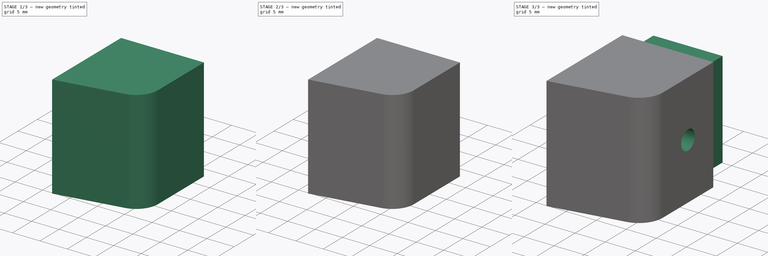
[diagram: build sequence overview — one tinted view per stage of 3, left to right]
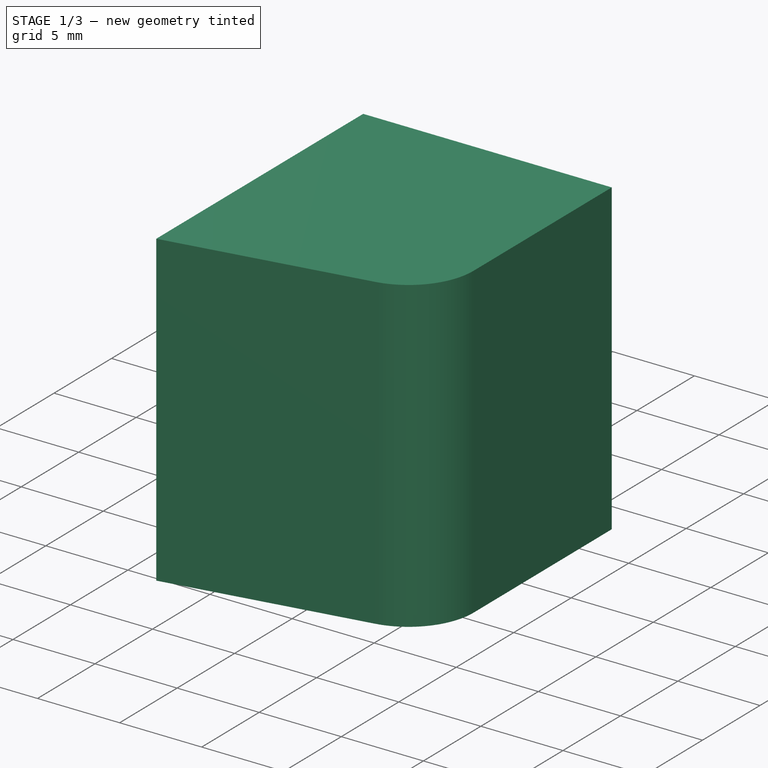
[diagram: stage 1 of 3 — iso view after this stage's code; geometry added in this stage tinted green]
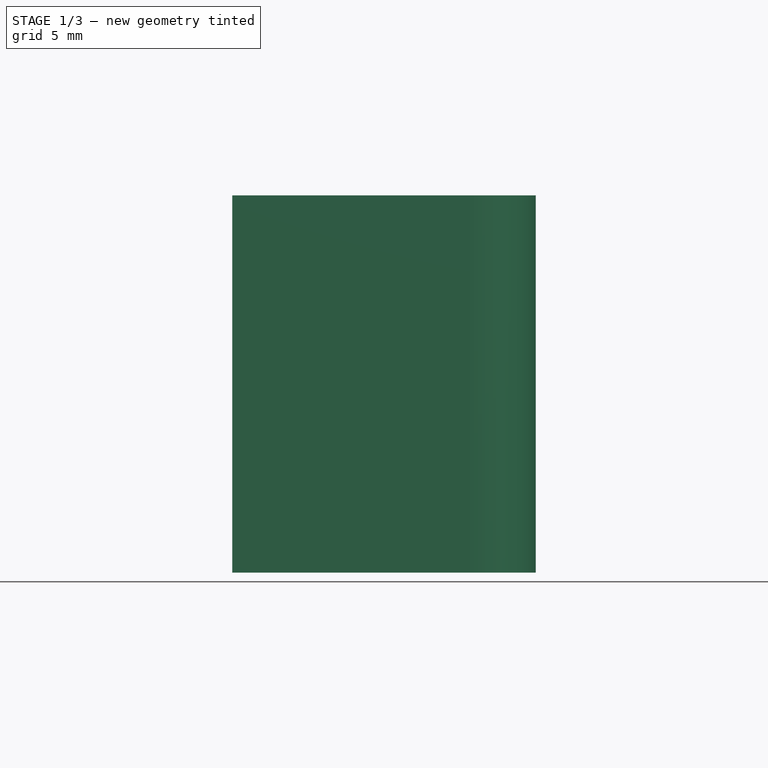
[diagram: stage 1 of 3 — front view after this stage's code; geometry added in this stage tinted green]
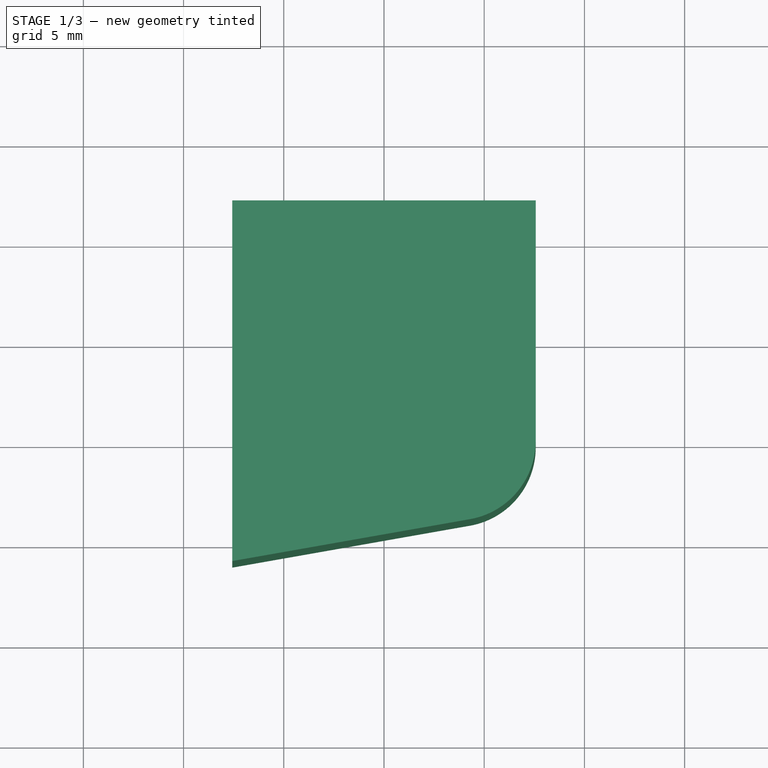
[diagram: stage 1 of 3 — top view after this stage's code; geometry added in this stage tinted green]
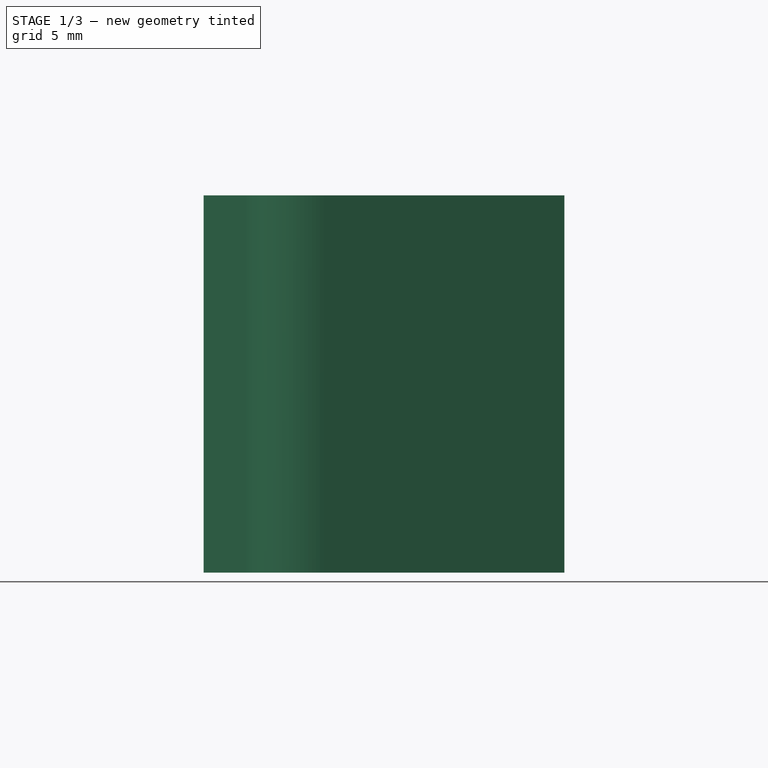
[diagram: stage 1 of 3 — right view after this stage's code; geometry added in this stage tinted green]
FCSTD DOCUMENT  (FreeCAD 0.20R)
Label: radial-fan-duct
License: All rights reserved
LicenseURL: http://en.wikipedia.org/wiki/All_rights_reserved
objects: Sketcher::SketchObject×5, PartDesign::Pocket×3, PartDesign::Pad×2, PartDesign::Body×1
note: 16 computed .brp shape members not serialized (recipe doc carries the construction recipe); baked Part::Feature solids carry a one-line shape summary decoded from their .brp

FEATURE [Sketcher::SketchObject] Sketch
  FullyConstrained = true
  MapMode = 5
  Support = -> [XY_Plane]
  sketch-geometry (8):
    g0: LineSegment StartX=-7.57 StartY=12 StartZ=0 EndX=7.57 EndY=12 EndZ=0
    g1: LineSegment StartX=7.57 StartY=12 StartZ=0 EndX=7.57 EndY=0 EndZ=0
    g2: LineSegment StartX=-7.57 StartY=0 StartZ=0 EndX=-7.57 EndY=12 EndZ=0
    g3: LineSegment StartX=0 StartY=0 StartZ=0 EndX=0 EndY=-6 EndZ=0
    g4: LineSegment StartX=-7.57 StartY=0 StartZ=0 EndX=-7.57 EndY=-6 EndZ=0
    g5: LineSegment StartX=-7.57 StartY=-6 StartZ=0 EndX=4.29019 EndY=-3.90873 EndZ=0
    g6: LineSegment StartX=0 StartY=-6 StartZ=0 EndX=-7.57 EndY=-6 EndZ=0
    g7: ArcOfCircle CenterX=3.60097 CenterY=-5e-16 CenterZ=0 NormalX=0 NormalY=0 NormalZ=1 AngleXU=0 Radius=3.96903 StartAngle=4.88692 EndAngle=6.28319
  constraints (21):
    c: Coincident(g0,g1)
    c: Coincident(g2,g0)
    c: Horizontal(g0)
    c: Vertical(g1)
    c: Vertical(g2)
    c: DistanceX(g0,g0) = 15.14
    c: DistanceY(g1,g1) = 12
    c: Symmetric(g1,g2,g-2)
    c: PointOnObject(g1,g-1)
    c: Coincident(g3,g-1)
    c: Vertical(g3)
    c: DistanceY(g3,g3) = 6
    c: Vertical(g4)
    c: Coincident(g4,g5)
    c: Coincident(g6,g3)
    c: Coincident(g6,g4)
    c: Horizontal(g6)
    c: Coincident(g4,g2)
    c: Tangent(g7,g1) = 1.5708
    c: Tangent(g7,g5) = -1.5708
    c: Angle(g6,g5) = 0.174533
FEATURE [PartDesign::Pad] Pad
  Direction = (0,0,1)
  Length = 18.82
  Length2 = 100
  Midplane = true
  Profile = -> Sketch
  ReferenceAxis = -> Sketch [N_Axis]
  Type = 0
FEATURE [Sketcher::SketchObject] Sketch001
  FullyConstrained = true
  MapMode = 5
  Placement = pos=(0,12,0) rot=(0,0.707107,0.707107;3.14159rad)
  Support = -> [Pad]
  sketch-geometry (4):
    g0: LineSegment StartX=-4.5 StartY=7 StartZ=0 EndX=4.5 EndY=7 EndZ=0
    g1: LineSegment StartX=4.5 StartY=7 StartZ=0 EndX=4.5 EndY=-7 EndZ=0
    g2: LineSegment StartX=4.5 StartY=-7 StartZ=0 EndX=-4.5 EndY=-7 EndZ=0
    g3: LineSegment StartX=-4.5 StartY=-7 StartZ=0 EndX=-4.5 EndY=7 EndZ=0
  constraints (10):
    c: Coincident(g0,g1)
    c: Coincident(g1,g2)
    c: Coincident(g2,g3)
    c: Coincident(g3,g0)
    c: Horizontal(g2)
    c: Vertical(g3)
    c: Symmetric(g0,g0,g-2)
    c: DistanceX(g2,g2) = 9
    c: DistanceY(g1,g1) = 14
    c: Symmetric(g0,g1,g-1)
FEATURE [PartDesign::Pocket] Pocket
  BaseFeature = -> Pad
  Direction = (0,-1,2e-16)
  Length = 12
  Length2 = 100
  Profile = -> Sketch001
  ReferenceAxis = -> Sketch001 [N_Axis]
  Type = 0
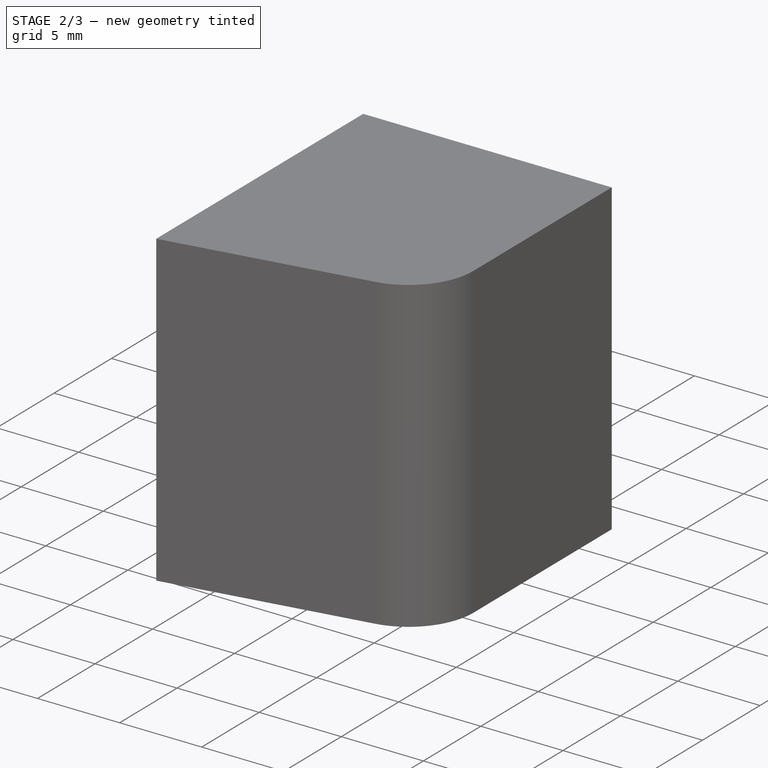
[diagram: stage 2 of 3 — iso view after this stage's code; geometry added in this stage tinted green]
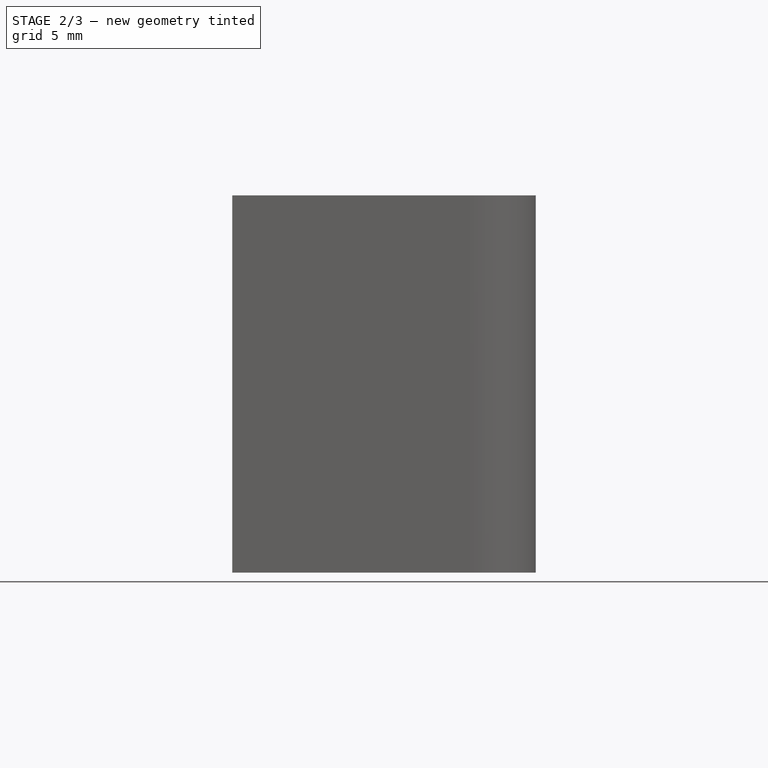
[diagram: stage 2 of 3 — front view after this stage's code; geometry added in this stage tinted green]
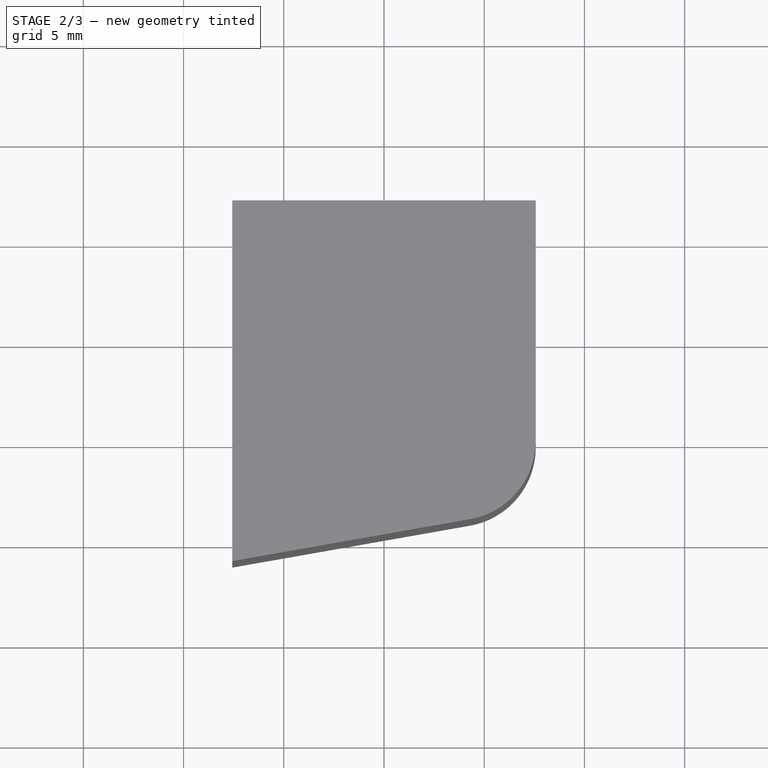
[diagram: stage 2 of 3 — top view after this stage's code; geometry added in this stage tinted green]
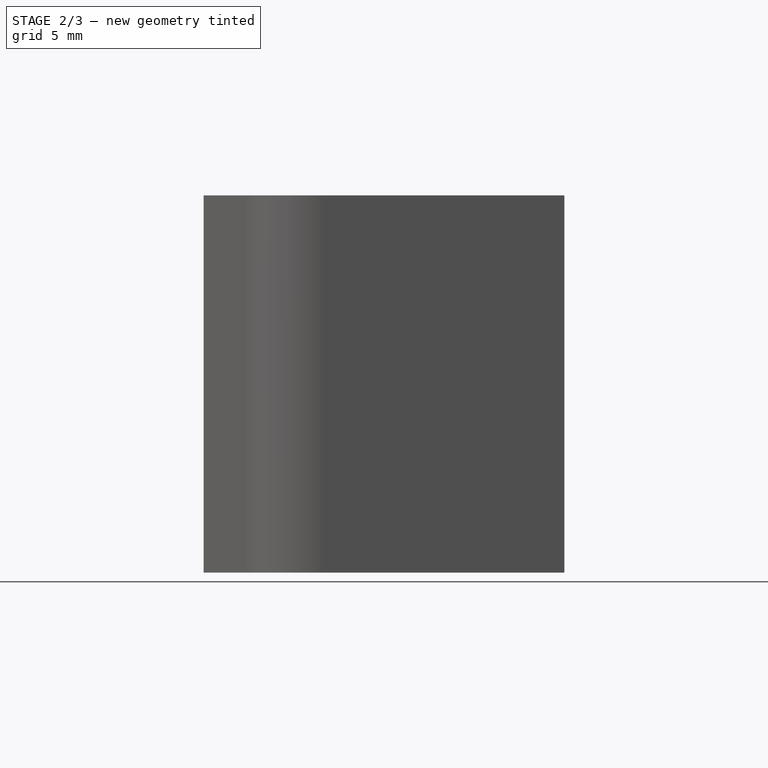
[diagram: stage 2 of 3 — right view after this stage's code; geometry added in this stage tinted green]
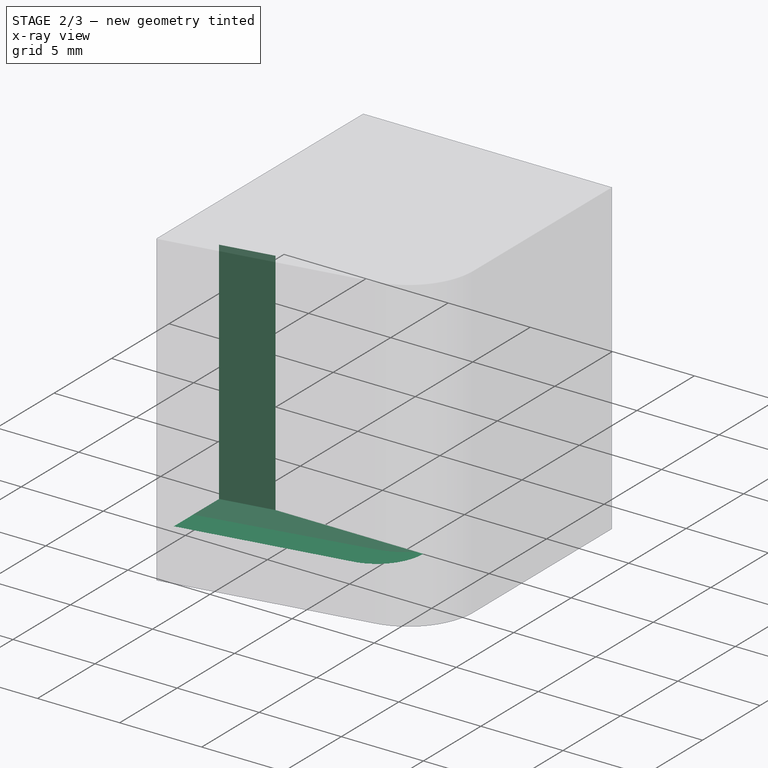
[diagram: stage 2 of 3 — x-ray composite at the iso view; earlier geometry ghosted, this stage's added geometry solid]
FEATURE [Sketcher::SketchObject] Sketch002
  ExternalGeometry = -> [Pocket]
  FullyConstrained = true
  MapMode = 5
  Placement = pos=(0,-1.6e-15,-7) rot=(0,0,1;0rad)
  Support = -> [Pocket]
  sketch-geometry (5):
    g0: LineSegment StartX=-4.5 StartY=0 StartZ=0 EndX=-7.57 EndY=-0.541324 EndZ=0
    g1: LineSegment StartX=-7.57 StartY=-0.541324 StartZ=0 EndX=-7.57 EndY=-4.5 EndZ=0
    g2: LineSegment StartX=-7.57 StartY=-4.5 StartZ=0 EndX=2.1643 EndY=-2.78358 EndZ=0
    g3: ArcOfCircle CenterX=1.67348 CenterY=0 CenterZ=0 NormalX=0 NormalY=0 NormalZ=1 AngleXU=0 Radius=2.82652 StartAngle=4.88692 EndAngle=6.28319
    g4: LineSegment StartX=-4.5 StartY=0 StartZ=0 EndX=4.5 EndY=-7e-16 EndZ=0
  constraints (13):
    c: Coincident(g-3,g0)
    c: PointOnObject(g0,g-5)
    c: Coincident(g0,g1)
    c: PointOnObject(g1,g-5)
    c: Coincident(g1,g2)
    c: PointOnObject(g3,g-1)
    c: Coincident(g3,g-4)
    c: Parallel(g2,g-7)
    c: Distance(g1,g-7) = 1.5
    c: Tangent(g3,g2) = -1.5708
    c: Parallel(g2,g0)
    c: Coincident(g4,g0)
    c: Coincident(g4,g3)
FEATURE [PartDesign::Pocket] Pocket001
  BaseFeature = -> Pocket
  Direction = (0,-2e-16,-1)
  Length = 14
  Length2 = 100
  Profile = -> Sketch002
  ReferenceAxis = -> Sketch002 [N_Axis]
  Reversed = true
  Type = 0
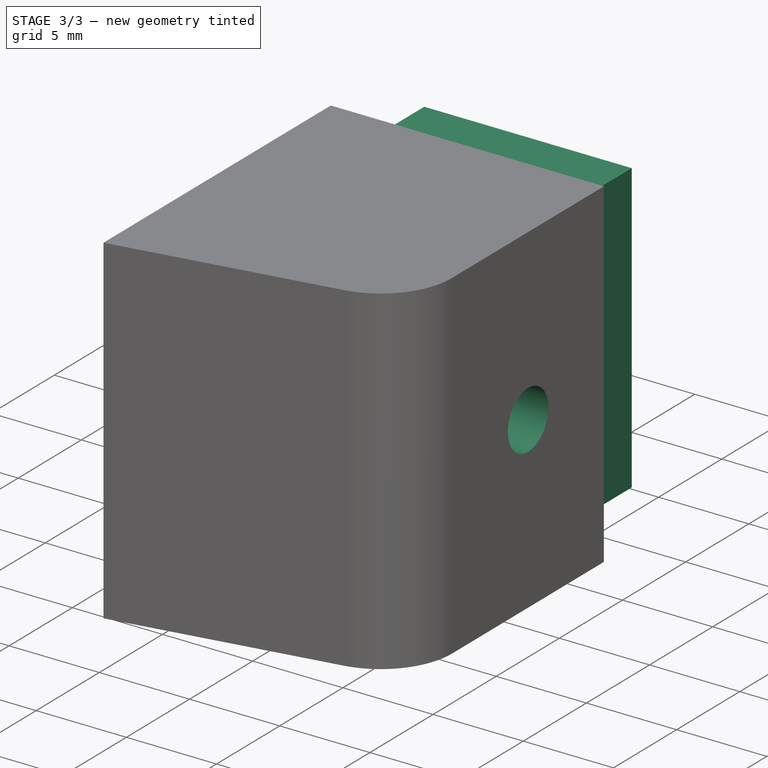
[diagram: stage 3 of 3 — iso view after this stage's code; geometry added in this stage tinted green]
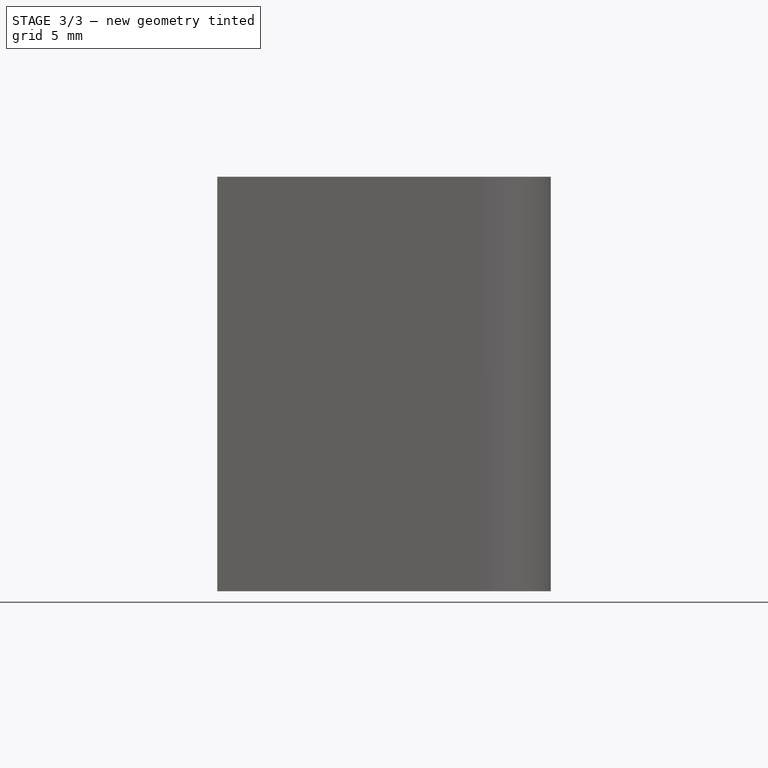
[diagram: stage 3 of 3 — front view after this stage's code; geometry added in this stage tinted green]
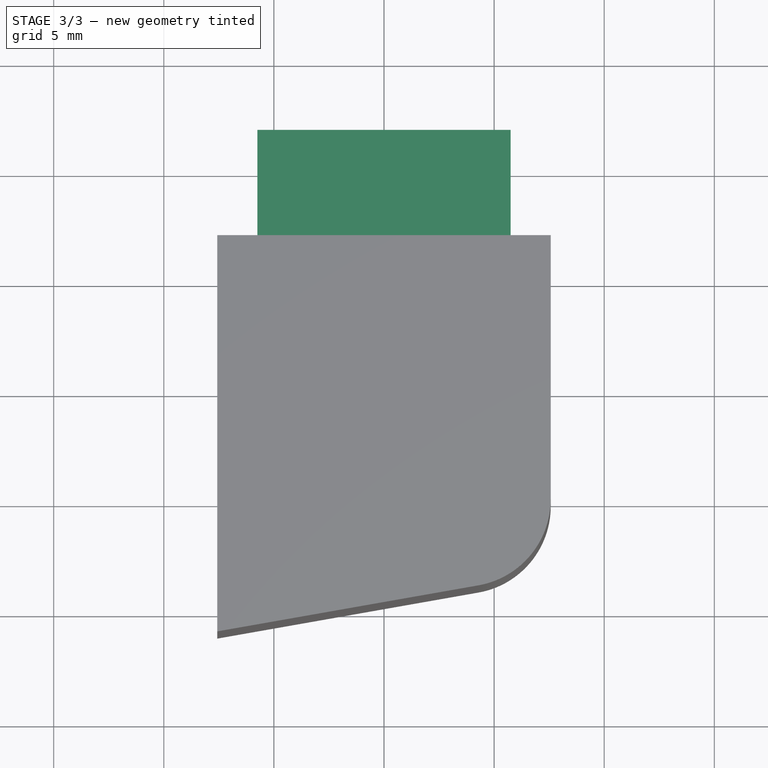
[diagram: stage 3 of 3 — top view after this stage's code; geometry added in this stage tinted green]
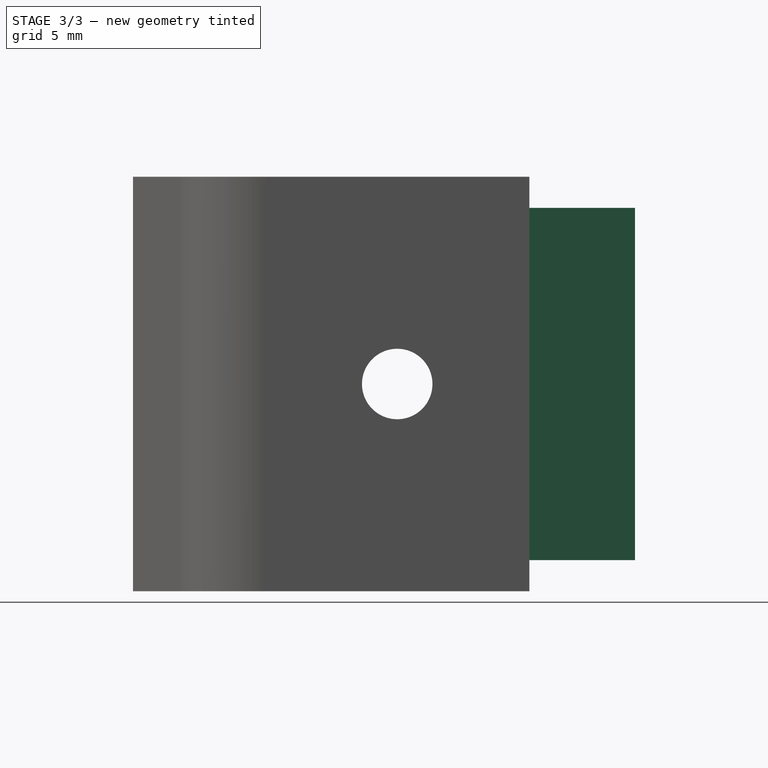
[diagram: stage 3 of 3 — right view after this stage's code; geometry added in this stage tinted green]
FEATURE [Sketcher::SketchObject] Sketch003
  ExternalGeometry = -> [Pocket001]
  FullyConstrained = true
  MapMode = 5
  Placement = pos=(0,12,0) rot=(0,0.707107,0.707107;3.14159rad)
  Support = -> [Pocket001]
  sketch-geometry (8):
    g0: LineSegment StartX=-4.5 StartY=7 StartZ=0 EndX=4.5 EndY=7 EndZ=0
    g1: LineSegment StartX=4.5 StartY=7 StartZ=0 EndX=4.5 EndY=-7 EndZ=0
    g2: LineSegment StartX=4.5 StartY=-7 StartZ=0 EndX=-4.5 EndY=-7 EndZ=0
    g3: LineSegment StartX=-4.5 StartY=-7 StartZ=0 EndX=-4.5 EndY=7 EndZ=0
    g4: LineSegment StartX=-5.75 StartY=8 StartZ=0 EndX=5.75 EndY=8 EndZ=0
    g5: LineSegment StartX=5.75 StartY=8 StartZ=0 EndX=5.75 EndY=-8 EndZ=0
    g6: LineSegment StartX=5.75 StartY=-8 StartZ=0 EndX=-5.75 EndY=-8 EndZ=0
    g7: LineSegment StartX=-5.75 StartY=-8 StartZ=0 EndX=-5.75 EndY=8 EndZ=0
  constraints (20):
    c: Coincident(g0,g1)
    c: Coincident(g1,g2)
    c: Coincident(g2,g3)
    c: Coincident(g3,g0)
    c: Horizontal(g0)
    c: Horizontal(g2)
    c: Vertical(g1)
    c: Vertical(g3)
    c: Coincident(g0,g-4)
    c: Coincident(g1,g-6)
    c: Coincident(g4,g5)
    c: Coincident(g5,g6)
    c: Coincident(g6,g7)
    c: Coincident(g7,g4)
    c: Horizontal(g6)
    c: Vertical(g7)
    c: Symmetric(g4,g5,g-1)
    c: Symmetric(g4,g4,g-2)
    c: DistanceX(g4,g4) = 11.5
    c: DistanceY(g7,g7) = 16
FEATURE [PartDesign::Pad] Pad001
  BaseFeature = -> Pocket001
  Direction = (0,1,-2e-16)
  Length = 4.8
  Length2 = 100
  Profile = -> Sketch003
  ReferenceAxis = -> Sketch003 [N_Axis]
  Type = 0
FEATURE [Sketcher::SketchObject] Sketch004
  ExternalGeometry = -> [Pad001]
  FullyConstrained = true
  MapMode = 5
  Placement = pos=(-7.57,0,0) rot=(0.57735,-0.57735,-0.57735;2.0944rad)
  Support = -> [Pad001]
  sketch-geometry (1):
    g0: Circle CenterX=-6 CenterY=0 CenterZ=0 NormalX=0 NormalY=0 NormalZ=1 AngleXU=0 Radius=1.6
  constraints (3):
    c: PointOnObject(g0,g-1)
    c: Distance(g0,g-3) = 6
    c: Radius(g0) = 1.6
FEATURE [PartDesign::Pocket] Pocket002
  BaseFeature = -> Pad001
  Direction = (1,0,0)
  Length = 5
  Length2 = 100
  Profile = -> Sketch004
  ReferenceAxis = -> Sketch004 [N_Axis]
  Type = 1
FEATURE [PartDesign::Body] Body
  Group = -> [Sketch,Pad,Sketch001,Pocket,Sketch002,Pocket001,Sketch003,Pad001,Sketch004,Pocket002]
  Origin = -> Origin
  Tip = -> Pocket002
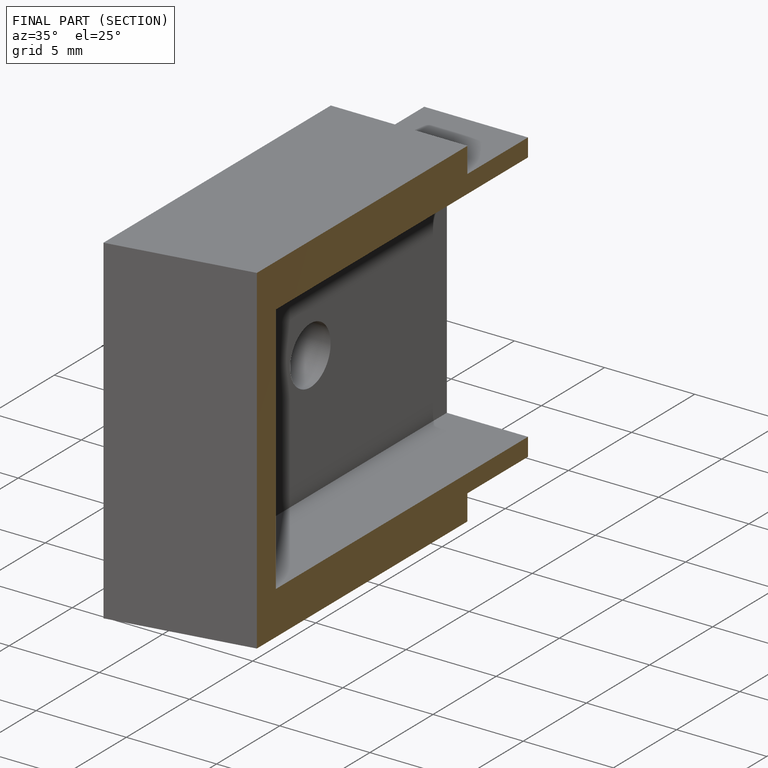
[diagram: finished part — half-section view (interior)]
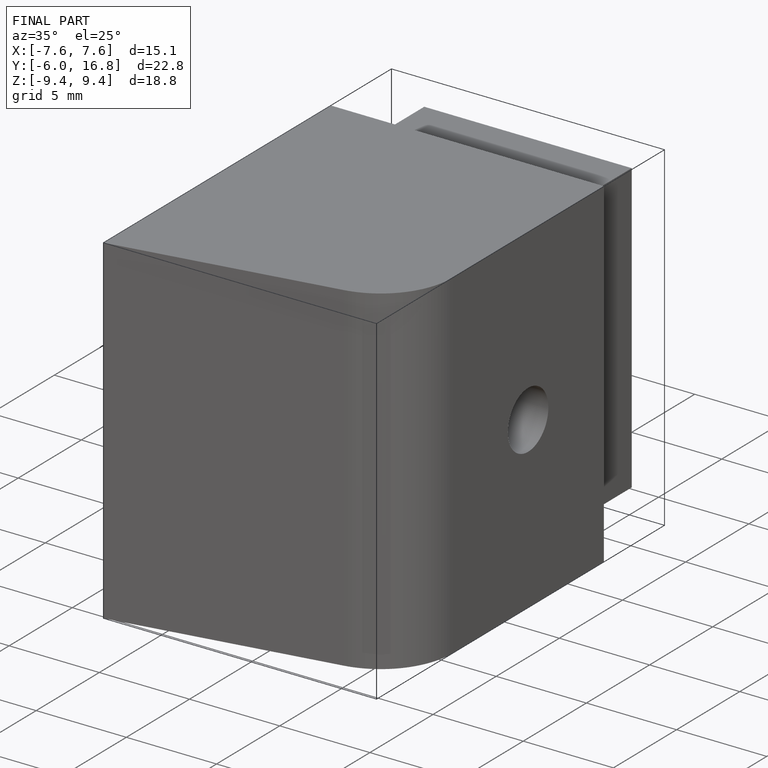
[diagram: finished part — iso view with bounding-box wireframe]
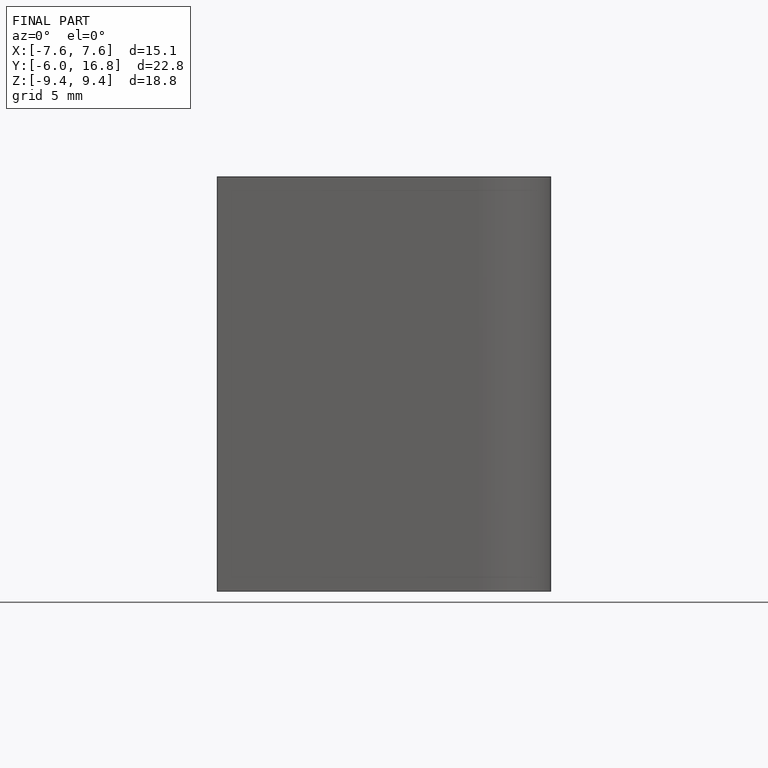
[diagram: finished part — front view with bounding-box wireframe]
